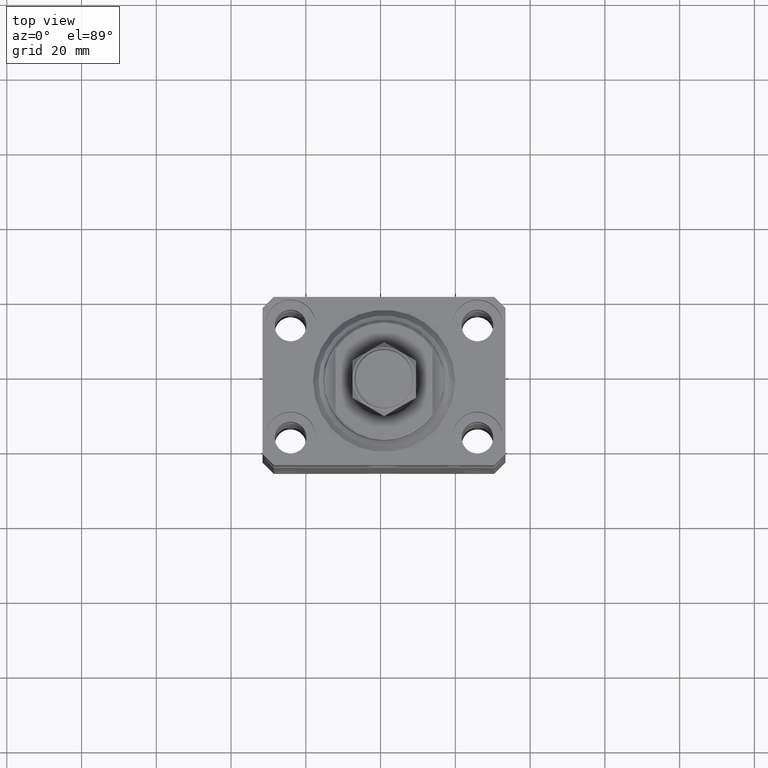
[diagram: clean part render]
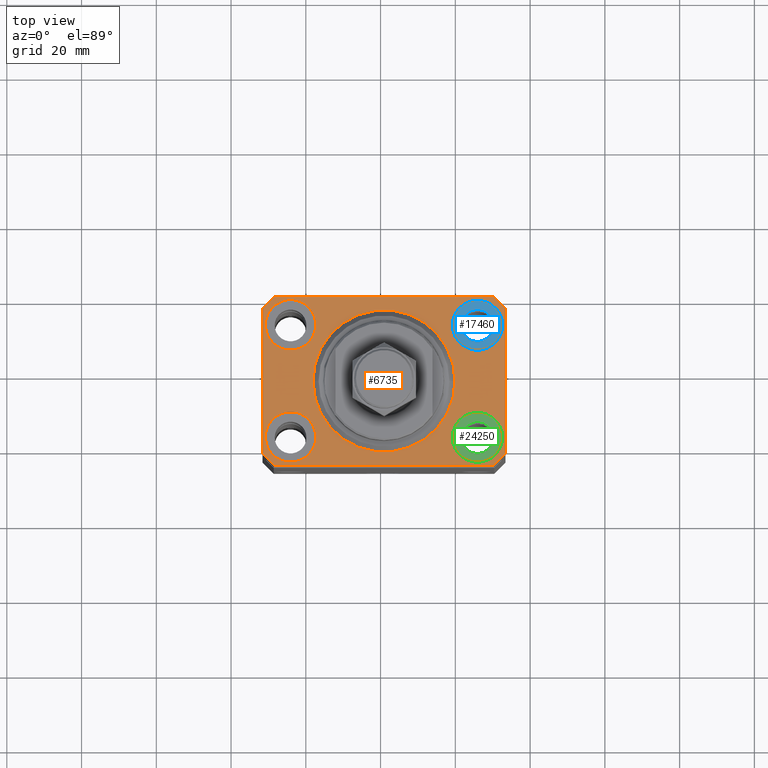
[diagram: same view with three faces highlighted in distinct colors, each labeled with its STEP entity id]
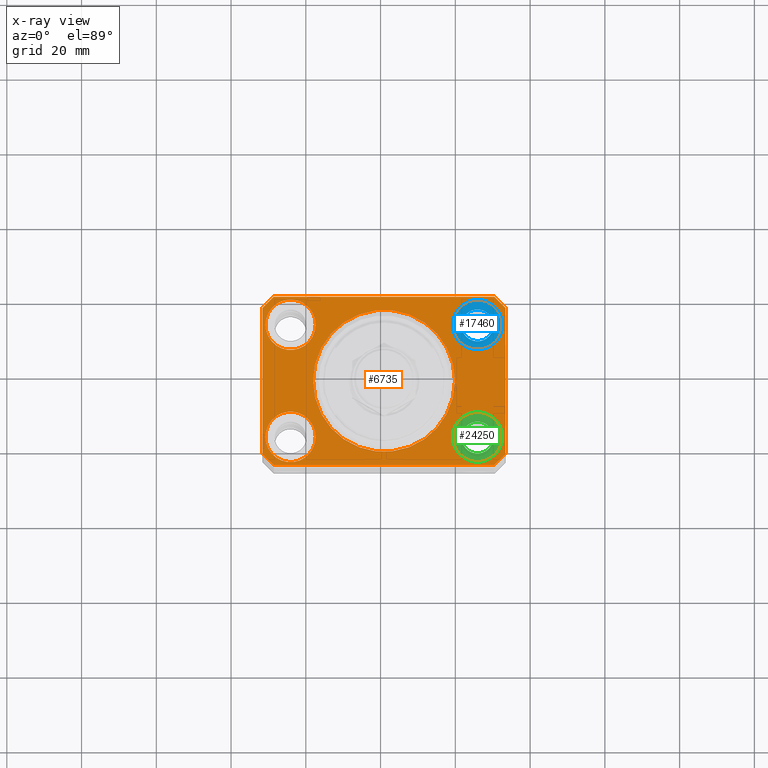
[diagram: x-ray of the same camera — body ghosted, the three highlighted faces saturated]
A machine part, top view with three faces highlighted in distinct colors.
The next image is the same camera in x-ray (body ghosted, the three faces saturated) — at least one of them is partly hidden behind the body in this view.
Their STEP definitions:

[orange] entity #6735 — the highlighted planar face has unit normal (0, 0, 1).
#227 = AXIS2_PLACEMENT_3D ( 'NONE', #32553, #236, #18643 ) ;
#236 = DIRECTION ( 'NONE',  ( 0.000000000000000000, 0.000000000000000000, 1.000000000000000000 ) ) ;
#862 = ORIENTED_EDGE ( 'NONE', *, *, #8754, .F. ) ;
#1625 = EDGE_CURVE ( 'NONE', #22956, #10006, #4478, .T. ) ;
#2504 = DIRECTION ( 'NONE',  ( 1.000000000000000000, 0.000000000000000000, 0.000000000000000000 ) ) ;
#2558 = ORIENTED_EDGE ( 'NONE', *, *, #7621, .F. ) ;
#2969 = CARTESIAN_POINT ( 'NONE',  ( 29.49999999999650413, -22.49999999999949196, 0.000000000000000000 ) ) ;
#2997 = VERTEX_POINT ( 'NONE', #39086 ) ;
#3137 = LINE ( 'NONE', #17099, #11484 ) ;
#3229 = CIRCLE ( 'NONE', #7735, 19.00000000000000000 ) ;
#3561 = LINE ( 'NONE', #39654, #33654 ) ;
#3877 = CIRCLE ( 'NONE', #34021, 19.00000000000000000 ) ;
#3899 = DIRECTION ( 'NONE',  ( 0.000000000000000000, 0.000000000000000000, 1.000000000000000000 ) ) ;
#4107 = FACE_BOUND ( 'NONE', #30731, .T. ) ;
#4157 = ORIENTED_EDGE ( 'NONE', *, *, #9184, .F. ) ;
#4325 = CARTESIAN_POINT ( 'NONE',  ( -32.49999999999650413, -19.49999999999949907, 0.000000000000000000 ) ) ;
#4436 = CARTESIAN_POINT ( 'NONE',  ( 19.00000000000000000, 0.000000000000000000, 0.000000000000000000 ) ) ;
#4478 = CIRCLE ( 'NONE', #25618, 6.749999999977465137 ) ;
#4619 = ORIENTED_EDGE ( 'NONE', *, *, #9682, .T. ) ;
#4742 = VECTOR ( 'NONE', #20349, 1000.000000000000114 ) ;
#4877 = VERTEX_POINT ( 'NONE', #10021 ) ;
#5137 = ORIENTED_EDGE ( 'NONE', *, *, #46144, .F. ) ;
#5151 = ORIENTED_EDGE ( 'NONE', *, *, #29433, .F. ) ;
#5756 = CARTESIAN_POINT ( 'NONE',  ( -32.49999999999650413, 19.49999999999949907, 0.000000000000000000 ) ) ;
#5893 = CARTESIAN_POINT ( 'NONE',  ( -18.24999999997747224, 15.00000000000000000, 0.000000000000000000 ) ) ;
#6539 = CARTESIAN_POINT ( 'NONE',  ( -25.00000000000000355, -15.00000000000000000, 0.000000000000000000 ) ) ;
#6735 = ADVANCED_FACE ( 'NONE', ( #43498, #22041, #36431, #4107, #46339, #7171 ), #25586, .T. ) ;
#6768 = CARTESIAN_POINT ( 'NONE',  ( -19.00000000000000000, 2.326828918379970970E-15, 0.000000000000000000 ) ) ;
#7140 = VECTOR ( 'NONE', #18106, 1000.000000000000000 ) ;
#7171 = FACE_OUTER_BOUND ( 'NONE', #35936, .T. ) ;
#7621 = EDGE_CURVE ( 'NONE', #45488, #4877, #34062, .T. ) ;
#7735 = AXIS2_PLACEMENT_3D ( 'NONE', #35992, #3899, #14530 ) ;
#8172 = DIRECTION ( 'NONE',  ( 0.000000000000000000, 0.000000000000000000, 1.000000000000000000 ) ) ;
#8754 = EDGE_CURVE ( 'NONE', #26835, #12948, #9234, .T. ) ;
#9184 = EDGE_CURVE ( 'NONE', #10006, #22956, #10024, .T. ) ;
#9234 = CIRCLE ( 'NONE', #25818, 6.749999999958452790 ) ;
#9339 = EDGE_CURVE ( 'NONE', #10424, #43437, #3137, .T. ) ;
#9553 = CARTESIAN_POINT ( 'NONE',  ( 29.49999999999650413, -22.49999999999949196, 0.000000000000000000 ) ) ;
#9682 = EDGE_CURVE ( 'NONE', #27312, #35214, #42258, .T. ) ;
#10006 = VERTEX_POINT ( 'NONE', #34839 ) ;
#10021 = CARTESIAN_POINT ( 'NONE',  ( -18.24999999995846167, -15.00000000000000000, 0.000000000000000000 ) ) ;
#10024 = CIRCLE ( 'NONE', #31121, 6.749999999977465137 ) ;
#10082 = CARTESIAN_POINT ( 'NONE',  ( -29.49999999999650413, 22.49999999999949907, 0.000000000000000000 ) ) ;
#10424 = VERTEX_POINT ( 'NONE', #23636 ) ;
#10489 = CARTESIAN_POINT ( 'NONE',  ( 0.000000000000000000, 0.000000000000000000, 0.000000000000000000 ) ) ;
#10579 = CIRCLE ( 'NONE', #33179, 6.749999999958452790 ) ;
#10595 = LINE ( 'NONE', #39365, #11023 ) ;
#10881 = EDGE_LOOP ( 'NONE', ( #4157, #24235 ) ) ;
#10908 = VERTEX_POINT ( 'NONE', #5893 ) ;
#11018 = DIRECTION ( 'NONE',  ( 1.000000000000000000, 0.000000000000000000, 0.000000000000000000 ) ) ;
#11023 = VECTOR ( 'NONE', #28773, 1000.000000000000114 ) ;
#11391 = ORIENTED_EDGE ( 'NONE', *, *, #30301, .T. ) ;
#11484 = VECTOR ( 'NONE', #38774, 1000.000000000000000 ) ;
#11590 = VECTOR ( 'NONE', #45262, 1000.000000000000000 ) ;
#11818 = DIRECTION ( 'NONE',  ( 0.000000000000000000, 0.000000000000000000, 1.000000000000000000 ) ) ;
#12948 = VERTEX_POINT ( 'NONE', #17153 ) ;
#13040 = CARTESIAN_POINT ( 'NONE',  ( -29.49999999999650413, 22.49999999999949907, 0.000000000000000000 ) ) ;
#13097 = EDGE_CURVE ( 'NONE', #29833, #30796, #35299, .T. ) ;
#13118 = EDGE_CURVE ( 'NONE', #46104, #27031, #3229, .T. ) ;
#13149 = DIRECTION ( 'NONE',  ( 0.000000000000000000, 0.000000000000000000, 1.000000000000000000 ) ) ;
#13283 = ORIENTED_EDGE ( 'NONE', *, *, #30514, .T. ) ;
#13611 = DIRECTION ( 'NONE',  ( 1.000000000000000000, 0.000000000000000000, 0.000000000000000000 ) ) ;
#14282 = DIRECTION ( 'NONE',  ( 1.000000000000000000, 0.000000000000000000, -0.000000000000000000 ) ) ;
#14329 = CARTESIAN_POINT ( 'NONE',  ( -32.49999999999650413, 19.49999999999949907, 0.000000000000000000 ) ) ;
#14530 = DIRECTION ( 'NONE',  ( 1.000000000000000000, 0.000000000000000000, 0.000000000000000000 ) ) ;
#15494 = CARTESIAN_POINT ( 'NONE',  ( 0.000000000000000000, 0.000000000000000000, 0.000000000000000000 ) ) ;
#15741 = EDGE_CURVE ( 'NONE', #43437, #27312, #27126, .T. ) ;
#16291 = CARTESIAN_POINT ( 'NONE',  ( 25.00000000000000355, -15.00000000000000000, 0.000000000000000000 ) ) ;
#16734 = AXIS2_PLACEMENT_3D ( 'NONE', #10489, #32199, #14282 ) ;
#16937 = CARTESIAN_POINT ( 'NONE',  ( 24.99999999999999645, 15.00000000000000888, 0.000000000000000000 ) ) ;
#17099 = CARTESIAN_POINT ( 'NONE',  ( 32.49999999999702993, 19.49999999999945999, 0.000000000000000000 ) ) ;
#17153 = CARTESIAN_POINT ( 'NONE',  ( 31.74999999995845101, 15.00000000000000888, 0.000000000000000000 ) ) ;
#17578 = CARTESIAN_POINT ( 'NONE',  ( 32.49999999999651124, -19.49999999999949196, 0.000000000000000000 ) ) ;
#18106 = DIRECTION ( 'NONE',  ( 0.000000000000000000, -1.000000000000000000, 0.000000000000000000 ) ) ;
#18643 = DIRECTION ( 'NONE',  ( 1.000000000000000000, 0.000000000000000000, 0.000000000000000000 ) ) ;
#19362 = EDGE_LOOP ( 'NONE', ( #5137, #42501 ) ) ;
#19372 = CARTESIAN_POINT ( 'NONE',  ( 25.00000000000000355, -15.00000000000000000, 0.000000000000000000 ) ) ;
#19404 = ORIENTED_EDGE ( 'NONE', *, *, #21921, .F. ) ;
#19704 = EDGE_CURVE ( 'NONE', #20028, #29833, #41408, .T. ) ;
#20028 = VERTEX_POINT ( 'NONE', #35612 ) ;
#20349 = DIRECTION ( 'NONE',  ( -0.7071067811865474617, -0.7071067811865474617, 0.000000000000000000 ) ) ;
#20808 = AXIS2_PLACEMENT_3D ( 'NONE', #24571, #22369, #31889 ) ;
#20951 = DIRECTION ( 'NONE',  ( 0.000000000000000000, 0.000000000000000000, 1.000000000000000000 ) ) ;
#21627 = LINE ( 'NONE', #14329, #7140 ) ;
#21921 = EDGE_CURVE ( 'NONE', #10908, #2997, #25086, .T. ) ;
#22041 = FACE_BOUND ( 'NONE', #10881, .T. ) ;
#22097 = DIRECTION ( 'NONE',  ( 1.000000000000000000, 0.000000000000000000, 0.000000000000000000 ) ) ;
#22369 = DIRECTION ( 'NONE',  ( 0.000000000000000000, 0.000000000000000000, 1.000000000000000000 ) ) ;
#22956 = VERTEX_POINT ( 'NONE', #28992 ) ;
#23509 = AXIS2_PLACEMENT_3D ( 'NONE', #6539, #20951, #11018 ) ;
#23636 = CARTESIAN_POINT ( 'NONE',  ( 32.49999999999702993, 19.49999999999945999, 0.000000000000000000 ) ) ;
#24235 = ORIENTED_EDGE ( 'NONE', *, *, #1625, .F. ) ;
#24473 = ORIENTED_EDGE ( 'NONE', *, *, #34616, .F. ) ;
#24571 = CARTESIAN_POINT ( 'NONE',  ( -25.00000000000000355, -15.00000000000000000, 0.000000000000000000 ) ) ;
#24738 = AXIS2_PLACEMENT_3D ( 'NONE', #28980, #8172, #26123 ) ;
#25086 = CIRCLE ( 'NONE', #227, 6.750000000022533087 ) ;
#25586 = PLANE ( 'NONE',  #16734 ) ;
#25618 = AXIS2_PLACEMENT_3D ( 'NONE', #16291, #39702, #33971 ) ;
#25818 = AXIS2_PLACEMENT_3D ( 'NONE', #41652, #13149, #2504 ) ;
#26123 = DIRECTION ( 'NONE',  ( 1.000000000000000000, 0.000000000000000000, 0.000000000000000000 ) ) ;
#26329 = EDGE_LOOP ( 'NONE', ( #5151, #2558 ) ) ;
#26835 = VERTEX_POINT ( 'NONE', #28535 ) ;
#27031 = VERTEX_POINT ( 'NONE', #4436 ) ;
#27121 = ORIENTED_EDGE ( 'NONE', *, *, #27436, .T. ) ;
#27126 = LINE ( 'NONE', #34416, #11590 ) ;
#27312 = VERTEX_POINT ( 'NONE', #10082 ) ;
#27398 = EDGE_LOOP ( 'NONE', ( #36620, #862 ) ) ;
#27436 = EDGE_CURVE ( 'NONE', #35214, #30891, #21627, .T. ) ;
#27975 = CARTESIAN_POINT ( 'NONE',  ( -29.49999999999650413, -22.49999999999949907, 0.000000000000000000 ) ) ;
#28489 = ORIENTED_EDGE ( 'NONE', *, *, #9339, .T. ) ;
#28535 = CARTESIAN_POINT ( 'NONE',  ( 18.25000000004154543, 15.00000000000000888, 0.000000000000000000 ) ) ;
#28773 = DIRECTION ( 'NONE',  ( 0.7071067811865474617, -0.7071067811865474617, 0.000000000000000000 ) ) ;
#28980 = CARTESIAN_POINT ( 'NONE',  ( -25.00000000000000355, 15.00000000000000000, 0.000000000000000000 ) ) ;
#28992 = CARTESIAN_POINT ( 'NONE',  ( 18.25000000002253842, -15.00000000000000000, 0.000000000000000000 ) ) ;
#29433 = EDGE_CURVE ( 'NONE', #4877, #45488, #41128, .T. ) ;
#29833 = VERTEX_POINT ( 'NONE', #9553 ) ;
#30301 = EDGE_CURVE ( 'NONE', #30796, #10424, #3561, .T. ) ;
#30514 = EDGE_CURVE ( 'NONE', #30891, #20028, #10595, .T. ) ;
#30731 = EDGE_LOOP ( 'NONE', ( #19404, #24473 ) ) ;
#30796 = VERTEX_POINT ( 'NONE', #17578 ) ;
#30891 = VERTEX_POINT ( 'NONE', #4325 ) ;
#31121 = AXIS2_PLACEMENT_3D ( 'NONE', #19372, #11818, #37054 ) ;
#31456 = CARTESIAN_POINT ( 'NONE',  ( -31.75000000004154899, -15.00000000000000000, 0.000000000000000000 ) ) ;
#31768 = DIRECTION ( 'NONE',  ( 0.000000000000000000, 0.000000000000000000, 1.000000000000000000 ) ) ;
#31889 = DIRECTION ( 'NONE',  ( 1.000000000000000000, 0.000000000000000000, 0.000000000000000000 ) ) ;
#32199 = DIRECTION ( 'NONE',  ( 0.000000000000000000, 0.000000000000000000, 1.000000000000000000 ) ) ;
#32553 = CARTESIAN_POINT ( 'NONE',  ( -25.00000000000000355, 15.00000000000000000, 0.000000000000000000 ) ) ;
#33018 = CIRCLE ( 'NONE', #24738, 6.750000000022533087 ) ;
#33179 = AXIS2_PLACEMENT_3D ( 'NONE', #16937, #31768, #13611 ) ;
#33654 = VECTOR ( 'NONE', #42724, 1000.000000000000000 ) ;
#33971 = DIRECTION ( 'NONE',  ( 1.000000000000000000, 0.000000000000000000, 0.000000000000000000 ) ) ;
#34021 = AXIS2_PLACEMENT_3D ( 'NONE', #15494, #37187, #22097 ) ;
#34036 = ORIENTED_EDGE ( 'NONE', *, *, #13097, .T. ) ;
#34062 = CIRCLE ( 'NONE', #23509, 6.750000000041541881 ) ;
#34416 = CARTESIAN_POINT ( 'NONE',  ( 29.49999999999707967, 22.49999999999951328, 0.000000000000000000 ) ) ;
#34616 = EDGE_CURVE ( 'NONE', #2997, #10908, #33018, .T. ) ;
#34839 = CARTESIAN_POINT ( 'NONE',  ( 31.74999999997746869, -15.00000000000000000, 0.000000000000000000 ) ) ;
#35214 = VERTEX_POINT ( 'NONE', #5756 ) ;
#35299 = LINE ( 'NONE', #2969, #40128 ) ;
#35612 = CARTESIAN_POINT ( 'NONE',  ( -29.49999999999650413, -22.49999999999949907, 0.000000000000000000 ) ) ;
#35936 = EDGE_LOOP ( 'NONE', ( #37598, #4619, #27121, #13283, #40011, #34036, #11391, #28489 ) ) ;
#35992 = CARTESIAN_POINT ( 'NONE',  ( 0.000000000000000000, 0.000000000000000000, 0.000000000000000000 ) ) ;
#36431 = FACE_BOUND ( 'NONE', #27398, .T. ) ;
#36620 = ORIENTED_EDGE ( 'NONE', *, *, #44237, .F. ) ;
#37054 = DIRECTION ( 'NONE',  ( 1.000000000000000000, 0.000000000000000000, 0.000000000000000000 ) ) ;
#37174 = VECTOR ( 'NONE', #45657, 1000.000000000000000 ) ;
#37187 = DIRECTION ( 'NONE',  ( 0.000000000000000000, 0.000000000000000000, 1.000000000000000000 ) ) ;
#37598 = ORIENTED_EDGE ( 'NONE', *, *, #15741, .T. ) ;
#38774 = DIRECTION ( 'NONE',  ( -0.7071067811865352493, 0.7071067811865597852, 0.000000000000000000 ) ) ;
#39086 = CARTESIAN_POINT ( 'NONE',  ( -31.75000000002253842, 15.00000000000000000, 0.000000000000000000 ) ) ;
#39365 = CARTESIAN_POINT ( 'NONE',  ( -32.49999999999650413, -19.49999999999949907, 0.000000000000000000 ) ) ;
#39654 = CARTESIAN_POINT ( 'NONE',  ( 32.49999999999651124, -19.49999999999949196, 0.000000000000000000 ) ) ;
#39702 = DIRECTION ( 'NONE',  ( 0.000000000000000000, 0.000000000000000000, 1.000000000000000000 ) ) ;
#40011 = ORIENTED_EDGE ( 'NONE', *, *, #19704, .T. ) ;
#40128 = VECTOR ( 'NONE', #45210, 1000.000000000000000 ) ;
#41128 = CIRCLE ( 'NONE', #20808, 6.750000000041541881 ) ;
#41408 = LINE ( 'NONE', #27975, #37174 ) ;
#41652 = CARTESIAN_POINT ( 'NONE',  ( 24.99999999999999645, 15.00000000000000888, 0.000000000000000000 ) ) ;
#42258 = LINE ( 'NONE', #13040, #4742 ) ;
#42501 = ORIENTED_EDGE ( 'NONE', *, *, #13118, .F. ) ;
#42724 = DIRECTION ( 'NONE',  ( 1.334402673828349134E-14, 1.000000000000000000, 0.000000000000000000 ) ) ;
#43437 = VERTEX_POINT ( 'NONE', #44157 ) ;
#43498 = FACE_BOUND ( 'NONE', #26329, .T. ) ;
#44157 = CARTESIAN_POINT ( 'NONE',  ( 29.49999999999707967, 22.49999999999951328, 0.000000000000000000 ) ) ;
#44237 = EDGE_CURVE ( 'NONE', #12948, #26835, #10579, .T. ) ;
#45210 = DIRECTION ( 'NONE',  ( 0.7071067811865483499, 0.7071067811865466846, 0.000000000000000000 ) ) ;
#45262 = DIRECTION ( 'NONE',  ( -1.000000000000000000, -2.352167425053553784E-16, 0.000000000000000000 ) ) ;
#45488 = VERTEX_POINT ( 'NONE', #31456 ) ;
#45657 = DIRECTION ( 'NONE',  ( 1.000000000000000000, 1.176083712526788232E-16, 0.000000000000000000 ) ) ;
#46104 = VERTEX_POINT ( 'NONE', #6768 ) ;
#46144 = EDGE_CURVE ( 'NONE', #27031, #46104, #3877, .T. ) ;
#46339 = FACE_BOUND ( 'NONE', #19362, .T. ) ;

[blue] entity #17460 — the highlighted planar face has unit normal (0, 0, 1).
#76 = EDGE_CURVE ( 'NONE', #14557, #5557, #30853, .T. ) ;
#1803 = ORIENTED_EDGE ( 'NONE', *, *, #30339, .F. ) ;
#4527 = CARTESIAN_POINT ( 'NONE',  ( 24.99999999999999645, 15.00000000000000888, -9.000000000000000000 ) ) ;
#5557 = VERTEX_POINT ( 'NONE', #21460 ) ;
#5704 = DIRECTION ( 'NONE',  ( 1.000000000000000000, 0.000000000000000000, 0.000000000000000000 ) ) ;
#7011 = AXIS2_PLACEMENT_3D ( 'NONE', #31204, #45794, #5704 ) ;
#7344 = ORIENTED_EDGE ( 'NONE', *, *, #76, .T. ) ;
#7382 = CARTESIAN_POINT ( 'NONE',  ( 24.99999999999999645, 15.00000000000000888, -9.000000000000000000 ) ) ;
#9227 = EDGE_LOOP ( 'NONE', ( #22183, #7344 ) ) ;
#10887 = DIRECTION ( 'NONE',  ( 0.000000000000000000, 0.000000000000000000, 1.000000000000000000 ) ) ;
#12579 = DIRECTION ( 'NONE',  ( 1.000000000000000000, 0.000000000000000000, -0.000000000000000000 ) ) ;
#13467 = CARTESIAN_POINT ( 'NONE',  ( 24.99999999999999645, 15.00000000000000888, -9.000000000000000000 ) ) ;
#14483 = FACE_OUTER_BOUND ( 'NONE', #9227, .T. ) ;
#14557 = VERTEX_POINT ( 'NONE', #40045 ) ;
#17460 = ADVANCED_FACE ( 'NONE', ( #28882, #14483 ), #43247, .T. ) ;
#17540 = CIRCLE ( 'NONE', #40959, 6.749999999958452790 ) ;
#17993 = VERTEX_POINT ( 'NONE', #43014 ) ;
#20015 = EDGE_CURVE ( 'NONE', #5557, #14557, #17540, .T. ) ;
#20039 = ORIENTED_EDGE ( 'NONE', *, *, #22824, .F. ) ;
#21460 = CARTESIAN_POINT ( 'NONE',  ( 31.74999999995845101, 15.00000000000000888, -9.000000000000000000 ) ) ;
#21788 = DIRECTION ( 'NONE',  ( 0.000000000000000000, 0.000000000000000000, 1.000000000000000000 ) ) ;
#22183 = ORIENTED_EDGE ( 'NONE', *, *, #20015, .T. ) ;
#22824 = EDGE_CURVE ( 'NONE', #17993, #44449, #41671, .T. ) ;
#23854 = AXIS2_PLACEMENT_3D ( 'NONE', #46273, #10887, #46498 ) ;
#26259 = DIRECTION ( 'NONE',  ( 1.000000000000000000, 0.000000000000000000, 0.000000000000000000 ) ) ;
#26320 = CARTESIAN_POINT ( 'NONE',  ( 20.75000000004154899, 15.00000000000000888, -9.000000000000000000 ) ) ;
#28079 = DIRECTION ( 'NONE',  ( 0.000000000000000000, 0.000000000000000000, 1.000000000000000000 ) ) ;
#28882 = FACE_BOUND ( 'NONE', #33884, .T. ) ;
#29794 = DIRECTION ( 'NONE',  ( 0.000000000000000000, 0.000000000000000000, 1.000000000000000000 ) ) ;
#29892 = CIRCLE ( 'NONE', #23854, 4.249999999958450125 ) ;
#30072 = AXIS2_PLACEMENT_3D ( 'NONE', #4527, #29794, #26259 ) ;
#30339 = EDGE_CURVE ( 'NONE', #44449, #17993, #29892, .T. ) ;
#30853 = CIRCLE ( 'NONE', #30072, 6.749999999958452790 ) ;
#31204 = CARTESIAN_POINT ( 'NONE',  ( 24.99999999999999645, 15.00000000000000888, -9.000000000000000000 ) ) ;
#33884 = EDGE_LOOP ( 'NONE', ( #20039, #1803 ) ) ;
#34689 = DIRECTION ( 'NONE',  ( 1.000000000000000000, 0.000000000000000000, 0.000000000000000000 ) ) ;
#40045 = CARTESIAN_POINT ( 'NONE',  ( 18.25000000004154543, 15.00000000000000888, -9.000000000000000000 ) ) ;
#40959 = AXIS2_PLACEMENT_3D ( 'NONE', #13467, #28079, #34689 ) ;
#41671 = CIRCLE ( 'NONE', #7011, 4.249999999958450125 ) ;
#43014 = CARTESIAN_POINT ( 'NONE',  ( 29.24999999995844746, 15.00000000000000888, -9.000000000000000000 ) ) ;
#43247 = PLANE ( 'NONE',  #44667 ) ;
#44449 = VERTEX_POINT ( 'NONE', #26320 ) ;
#44667 = AXIS2_PLACEMENT_3D ( 'NONE', #7382, #21788, #12579 ) ;
#45794 = DIRECTION ( 'NONE',  ( 0.000000000000000000, 0.000000000000000000, 1.000000000000000000 ) ) ;
#46273 = CARTESIAN_POINT ( 'NONE',  ( 24.99999999999999645, 15.00000000000000888, -9.000000000000000000 ) ) ;
#46498 = DIRECTION ( 'NONE',  ( 1.000000000000000000, 0.000000000000000000, 0.000000000000000000 ) ) ;

[green] entity #24250 — the highlighted planar face has unit normal (0, 0, 1).
#1207 = DIRECTION ( 'NONE',  ( 0.000000000000000000, 0.000000000000000000, 1.000000000000000000 ) ) ;
#2410 = CIRCLE ( 'NONE', #5398, 6.749999999977465137 ) ;
#2851 = FACE_BOUND ( 'NONE', #19058, .T. ) ;
#5035 = VERTEX_POINT ( 'NONE', #7393 ) ;
#5398 = AXIS2_PLACEMENT_3D ( 'NONE', #26229, #1207, #26465 ) ;
#5561 = DIRECTION ( 'NONE',  ( 1.000000000000000000, 0.000000000000000000, 0.000000000000000000 ) ) ;
#6070 = DIRECTION ( 'NONE',  ( 0.000000000000000000, 0.000000000000000000, 1.000000000000000000 ) ) ;
#7199 = EDGE_CURVE ( 'NONE', #13984, #5035, #2410, .T. ) ;
#7393 = CARTESIAN_POINT ( 'NONE',  ( 18.25000000002253842, -15.00000000000000000, -9.000000000000000000 ) ) ;
#7896 = CARTESIAN_POINT ( 'NONE',  ( 31.74999999997746869, -15.00000000000000000, -9.000000000000000000 ) ) ;
#9610 = CARTESIAN_POINT ( 'NONE',  ( 29.24999999997746869, -15.00000000000000000, -9.000000000000000000 ) ) ;
#10339 = CARTESIAN_POINT ( 'NONE',  ( 25.00000000000000355, -15.00000000000000000, -9.000000000000000000 ) ) ;
#10720 = CIRCLE ( 'NONE', #35569, 6.749999999977465137 ) ;
#11046 = ORIENTED_EDGE ( 'NONE', *, *, #11303, .T. ) ;
#11303 = EDGE_CURVE ( 'NONE', #5035, #13984, #10720, .T. ) ;
#11789 = DIRECTION ( 'NONE',  ( 1.000000000000000000, 0.000000000000000000, -0.000000000000000000 ) ) ;
#13214 = CIRCLE ( 'NONE', #17750, 4.249999999977462473 ) ;
#13403 = CARTESIAN_POINT ( 'NONE',  ( 25.00000000000000355, -15.00000000000000000, -9.000000000000000000 ) ) ;
#13715 = PLANE ( 'NONE',  #25926 ) ;
#13984 = VERTEX_POINT ( 'NONE', #7896 ) ;
#14644 = CARTESIAN_POINT ( 'NONE',  ( 25.00000000000000355, -15.00000000000000000, -9.000000000000000000 ) ) ;
#17091 = CARTESIAN_POINT ( 'NONE',  ( 20.75000000002254197, -15.00000000000000000, -9.000000000000000000 ) ) ;
#17142 = AXIS2_PLACEMENT_3D ( 'NONE', #10339, #24746, #39120 ) ;
#17750 = AXIS2_PLACEMENT_3D ( 'NONE', #44247, #19961, #5561 ) ;
#17807 = VERTEX_POINT ( 'NONE', #9610 ) ;
#19058 = EDGE_LOOP ( 'NONE', ( #31926, #45158 ) ) ;
#19961 = DIRECTION ( 'NONE',  ( 0.000000000000000000, 0.000000000000000000, 1.000000000000000000 ) ) ;
#20480 = DIRECTION ( 'NONE',  ( 1.000000000000000000, 0.000000000000000000, 0.000000000000000000 ) ) ;
#21531 = ORIENTED_EDGE ( 'NONE', *, *, #7199, .T. ) ;
#24250 = ADVANCED_FACE ( 'NONE', ( #2851, #46018 ), #13715, .T. ) ;
#24746 = DIRECTION ( 'NONE',  ( 0.000000000000000000, 0.000000000000000000, 1.000000000000000000 ) ) ;
#25926 = AXIS2_PLACEMENT_3D ( 'NONE', #14644, #33030, #11789 ) ;
#26229 = CARTESIAN_POINT ( 'NONE',  ( 25.00000000000000355, -15.00000000000000000, -9.000000000000000000 ) ) ;
#26465 = DIRECTION ( 'NONE',  ( 1.000000000000000000, 0.000000000000000000, 0.000000000000000000 ) ) ;
#27492 = EDGE_CURVE ( 'NONE', #17807, #35258, #13214, .T. ) ;
#31926 = ORIENTED_EDGE ( 'NONE', *, *, #27492, .F. ) ;
#33030 = DIRECTION ( 'NONE',  ( 0.000000000000000000, 0.000000000000000000, 1.000000000000000000 ) ) ;
#33271 = EDGE_CURVE ( 'NONE', #35258, #17807, #37460, .T. ) ;
#35258 = VERTEX_POINT ( 'NONE', #17091 ) ;
#35569 = AXIS2_PLACEMENT_3D ( 'NONE', #13403, #6070, #20480 ) ;
#37460 = CIRCLE ( 'NONE', #17142, 4.249999999977462473 ) ;
#39120 = DIRECTION ( 'NONE',  ( 1.000000000000000000, 0.000000000000000000, 0.000000000000000000 ) ) ;
#41988 = EDGE_LOOP ( 'NONE', ( #21531, #11046 ) ) ;
#44247 = CARTESIAN_POINT ( 'NONE',  ( 25.00000000000000355, -15.00000000000000000, -9.000000000000000000 ) ) ;
#45158 = ORIENTED_EDGE ( 'NONE', *, *, #33271, .F. ) ;
#46018 = FACE_OUTER_BOUND ( 'NONE', #41988, .T. ) ;